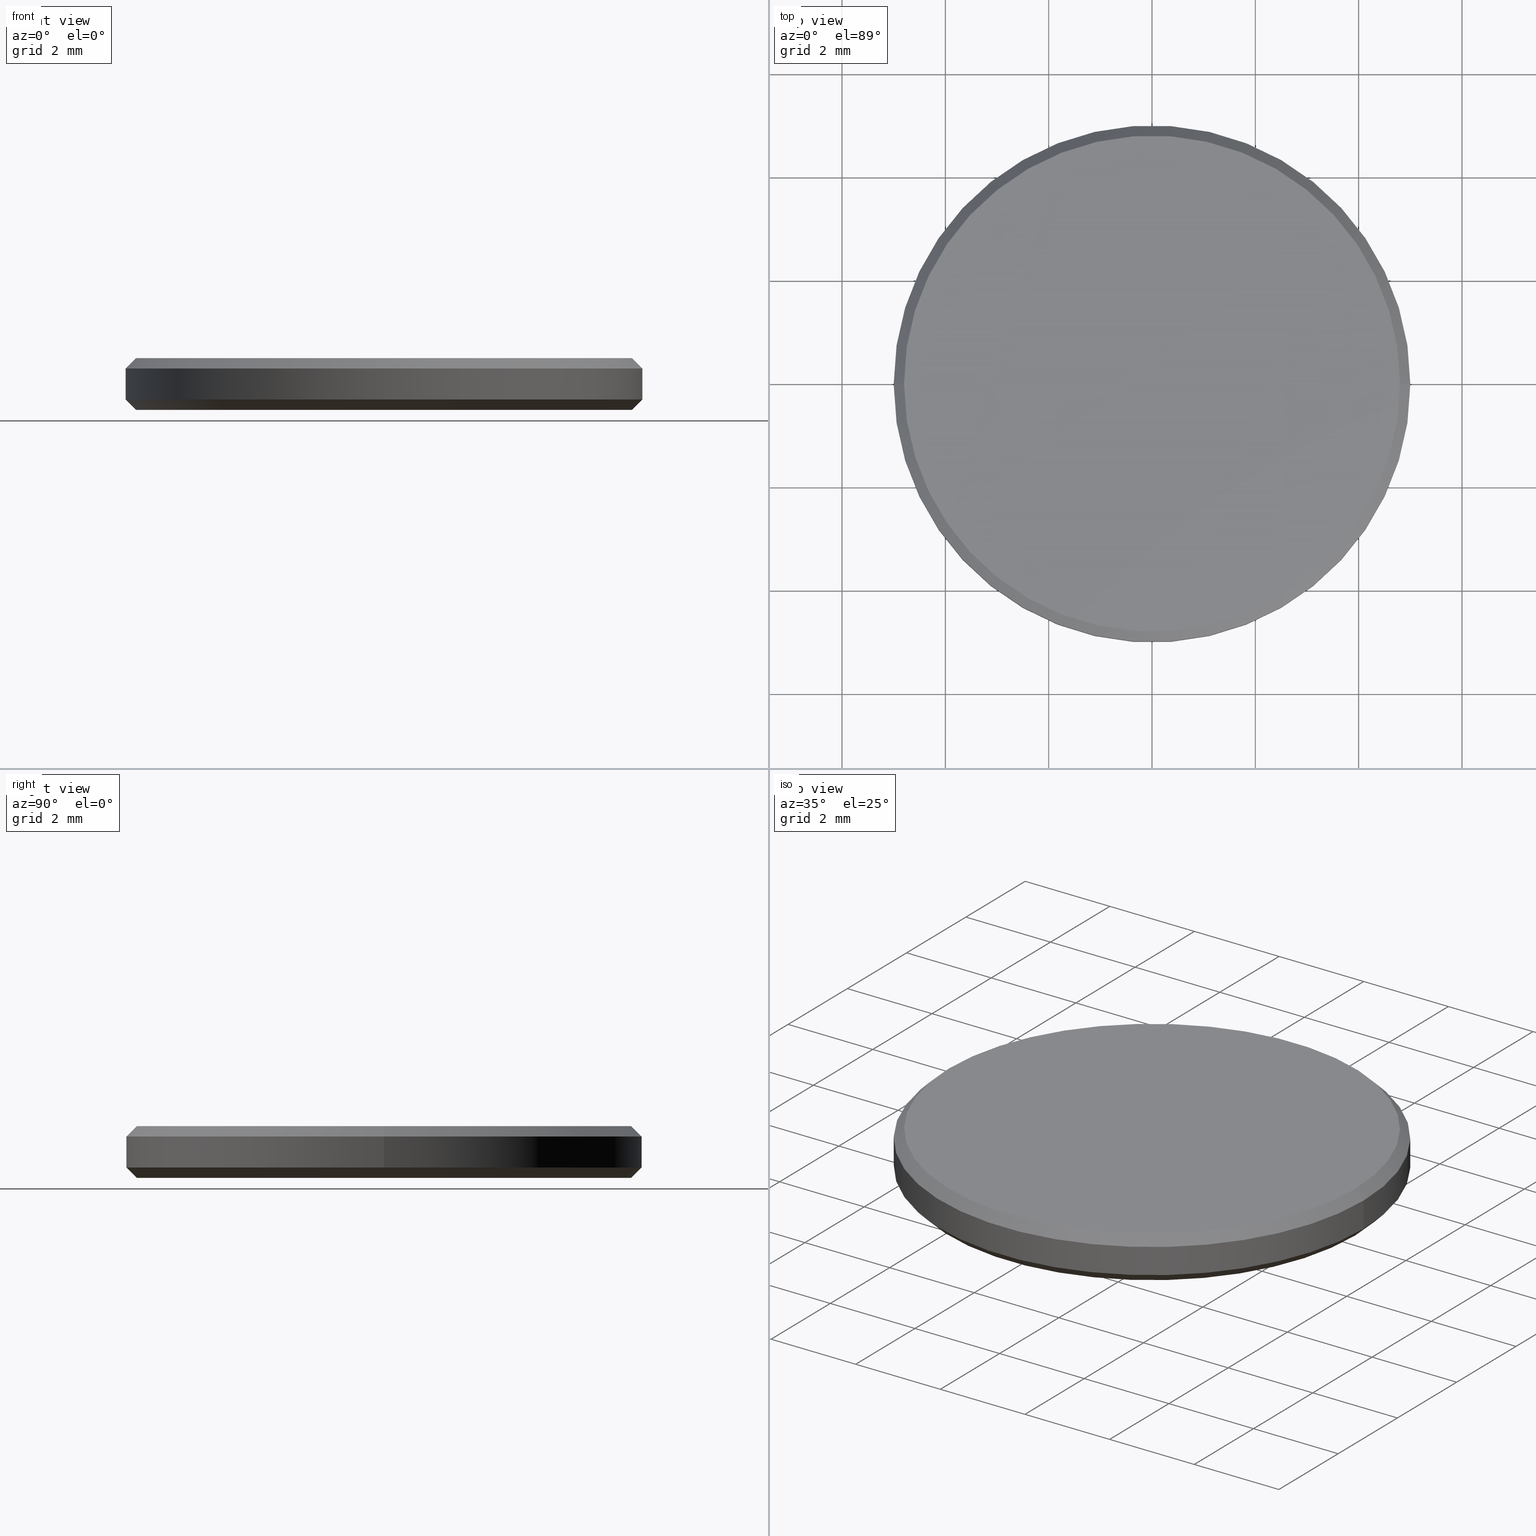
[diagram: canonical four-view strip — front | top / right | iso, engineering-drawing reading convention]
A machine part, canonical four-view strip (front | top / right | iso — engineering-drawing reading convention). The complete STEP part file that produces these views, byte-faithful:
ISO-10303-21;
HEADER;
FILE_DESCRIPTION (( 'STEP AP214' ),
    '1' );
FILE_NAME ('GNIF-160-3850-D10.STEP',
    '2024-07-19T14:41:08',
    ( '' ),
    ( '' ),
    'SwSTEP 2.0',
    'SolidWorks 2022',
    '' );
FILE_SCHEMA (( 'AUTOMOTIVE_DESIGN' ));
ENDSEC;

DATA;
#1 = EDGE_LOOP ( 'NONE', ( #84, #239, #170, #235 ) ) ;
#2 = DIRECTION ( 'NONE',  ( -0.000000000000000000, -0.000000000000000000, 1.000000000000000000 ) ) ;
#3 = CARTESIAN_POINT ( 'NONE',  ( 5.000000000000000000, 6.123233995736766282E-16, 1.000000000000000000 ) ) ;
#4 = PRESENTATION_LAYER_ASSIGNMENT (  '', '', ( #215 ) ) ;
#5 = ORIENTED_EDGE ( 'NONE', *, *, #52, .T. ) ;
#6 = DIRECTION ( 'NONE',  ( 1.000000000000000000, 0.000000000000000000, 0.000000000000000000 ) ) ;
#7 = FACE_OUTER_BOUND ( 'NONE', #237, .T. ) ;
#8 = CARTESIAN_POINT ( 'NONE',  ( 0.000000000000000000, 0.000000000000000000, 0.8000000000000012657 ) ) ;
#9 =( NAMED_UNIT ( * ) SI_UNIT ( $, .STERADIAN. ) SOLID_ANGLE_UNIT ( ) );
#10 = MECHANICAL_DESIGN_GEOMETRIC_PRESENTATION_REPRESENTATION (  '', ( #229 ), #236 ) ;
#11 = ADVANCED_FACE ( 'NONE', ( #138 ), #142, .T. ) ;
#12 = AXIS2_PLACEMENT_3D ( 'NONE', #232, #73, #41 ) ;
#13 = LINE ( 'NONE', #78, #231 ) ;
#14 =( NAMED_UNIT ( * ) SI_UNIT ( $, .STERADIAN. ) SOLID_ANGLE_UNIT ( ) );
#15 = ORIENTED_EDGE ( 'NONE', *, *, #189, .T. ) ;
#16 = FACE_OUTER_BOUND ( 'NONE', #133, .T. ) ;
#17 = ADVANCED_FACE ( 'NONE', ( #190 ), #197, .T. ) ;
#18 = EDGE_LOOP ( 'NONE', ( #207, #153 ) ) ;
#19 = DIRECTION ( 'NONE',  ( -0.000000000000000000, -0.000000000000000000, -1.000000000000000000 ) ) ;
#20 = AXIS2_PLACEMENT_3D ( 'NONE', #90, #161, #122 ) ;
#21 = APPLICATION_CONTEXT ( 'automotive_design' ) ;
#22 = EDGE_LOOP ( 'NONE', ( #118, #177, #149, #77 ) ) ;
#23 = DIRECTION ( 'NONE',  ( -1.000000000000000000, 0.000000000000000000, 0.000000000000000000 ) ) ;
#24 = VECTOR ( 'NONE', #91, 1000.000000000000114 ) ;
#25 = DIRECTION ( 'NONE',  ( 1.000000000000000000, 0.000000000000000000, 0.000000000000000000 ) ) ;
#26 = DIRECTION ( 'NONE',  ( 0.000000000000000000, 0.000000000000000000, -1.000000000000000000 ) ) ;
#27 = ADVANCED_FACE ( 'NONE', ( #168 ), #228, .T. ) ;
#28 = AXIS2_PLACEMENT_3D ( 'NONE', #147, #217, #169 ) ;
#29 = FILL_AREA_STYLE_COLOUR ( '', #120 ) ;
#30 = AXIS2_PLACEMENT_3D ( 'NONE', #154, #221, #115 ) ;
#31 = FILL_AREA_STYLE_COLOUR ( '', #127 ) ;
#32 = VECTOR ( 'NONE', #195, 1000.000000000000000 ) ;
#33 = CARTESIAN_POINT ( 'NONE',  ( 0.000000000000000000, 0.000000000000000000, 0.000000000000000000 ) ) ;
#34 = ORIENTED_EDGE ( 'NONE', *, *, #180, .F. ) ;
#35 =( NAMED_UNIT ( * ) PLANE_ANGLE_UNIT ( ) SI_UNIT ( $, .RADIAN. ) );
#36 = PLANE ( 'NONE',  #38 ) ;
#37 = VERTEX_POINT ( 'NONE', #57 ) ;
#38 = AXIS2_PLACEMENT_3D ( 'NONE', #131, #114, #238 ) ;
#39 = VERTEX_POINT ( 'NONE', #150 ) ;
#40 = ADVANCED_FACE ( 'NONE', ( #16 ), #75, .T. ) ;
#41 = DIRECTION ( 'NONE',  ( 1.000000000000000000, 0.000000000000000000, 0.000000000000000000 ) ) ;
#42 = FACE_OUTER_BOUND ( 'NONE', #18, .T. ) ;
#43 = PRODUCT_DEFINITION ( 'δ֪', '', #223, #212 ) ;
#44 = AXIS2_PLACEMENT_3D ( 'NONE', #164, #103, #23 ) ;
#45 = DIRECTION ( 'NONE',  ( -0.000000000000000000, -0.000000000000000000, 1.000000000000000000 ) ) ;
#46 = LINE ( 'NONE', #194, #24 ) ;
#47 = APPLICATION_CONTEXT ( 'automotive_design' ) ;
#48 = DIRECTION ( 'NONE',  ( 1.000000000000000000, 0.000000000000000000, 0.000000000000000000 ) ) ;
#49 = DIRECTION ( 'NONE',  ( -1.000000000000000000, 0.000000000000000000, 0.000000000000000000 ) ) ;
#50 = PRESENTATION_LAYER_ASSIGNMENT (  '', '', ( #229 ) ) ;
#51 = ORIENTED_EDGE ( 'NONE', *, *, #210, .T. ) ;
#52 = EDGE_CURVE ( 'NONE', #37, #95, #225, .T. ) ;
#53 = AXIS2_PLACEMENT_3D ( 'NONE', #55, #117, #191 ) ;
#54 = DIRECTION ( 'NONE',  ( -0.7071067811865460184, 0.000000000000000000, -0.7071067811865489050 ) ) ;
#55 = CARTESIAN_POINT ( 'NONE',  ( 0.000000000000000000, 0.000000000000000000, 1.000000000000000000 ) ) ;
#56 = AXIS2_PLACEMENT_3D ( 'NONE', #218, #151, #49 ) ;
#57 = CARTESIAN_POINT ( 'NONE',  ( 4.799999999999999822, 0.000000000000000000, 0.000000000000000000 ) ) ;
#58 = ADVANCED_FACE ( 'NONE', ( #112 ), #36, .F. ) ;
#59 = MANIFOLD_SOLID_BREP ( '����1', #60 ) ;
#60 = CLOSED_SHELL ( 'NONE', ( #216, #17, #128, #40, #240, #58, #11, #27 ) ) ;
#61 = DIRECTION ( 'NONE',  ( -0.7071067811865490160, 8.659560562354950115E-17, 0.7071067811865459074 ) ) ;
#62 = CARTESIAN_POINT ( 'NONE',  ( -4.799999999999999822, 6.000769315822029754E-16, 0.000000000000000000 ) ) ;
#63 =( LENGTH_UNIT ( ) NAMED_UNIT ( * ) SI_UNIT ( .MILLI., .METRE. ) );
#64 = CARTESIAN_POINT ( 'NONE',  ( 0.000000000000000000, 0.000000000000000000, 1.000000000000000000 ) ) ;
#65 = CIRCLE ( 'NONE', #152, 4.800000000000002487 ) ;
#66 = AXIS2_PLACEMENT_3D ( 'NONE', #140, #26, #179 ) ;
#67 = EDGE_CURVE ( 'NONE', #79, #173, #13, .T. ) ;
#68 = LINE ( 'NONE', #101, #32 ) ;
#69 = UNCERTAINTY_MEASURE_WITH_UNIT (LENGTH_MEASURE( 1.000000000000000082E-05 ), #63, 'distance_accuracy_value', 'NONE');
#70 = MECHANICAL_DESIGN_GEOMETRIC_PRESENTATION_REPRESENTATION (  '', ( #215 ), #205 ) ;
#71 = PRESENTATION_STYLE_ASSIGNMENT (( #184 ) ) ;
#72 = PRESENTATION_STYLE_ASSIGNMENT (( #201 ) ) ;
#73 = DIRECTION ( 'NONE',  ( -0.000000000000000000, -0.000000000000000000, 1.000000000000000000 ) ) ;
#74 = SHAPE_DEFINITION_REPRESENTATION ( #188, #172 ) ;
#75 = CYLINDRICAL_SURFACE ( 'NONE', #56, 5.000000000000000000 ) ;
#76 = VECTOR ( 'NONE', #61, 1000.000000000000000 ) ;
#77 = ORIENTED_EDGE ( 'NONE', *, *, #67, .F. ) ;
#78 = CARTESIAN_POINT ( 'NONE',  ( -4.800000000000002487, 0.000000000000000000, 1.000000000000000000 ) ) ;
#79 = VERTEX_POINT ( 'NONE', #136 ) ;
#80 =( LENGTH_UNIT ( ) NAMED_UNIT ( * ) SI_UNIT ( .MILLI., .METRE. ) );
#81 = ORIENTED_EDGE ( 'NONE', *, *, #86, .F. ) ;
#82 = AXIS2_PLACEMENT_3D ( 'NONE', #64, #162, #145 ) ;
#83 = DIRECTION ( 'NONE',  ( 1.000000000000000000, 0.000000000000000000, 0.000000000000000000 ) ) ;
#84 = ORIENTED_EDGE ( 'NONE', *, *, #106, .F. ) ;
#85 = ORIENTED_EDGE ( 'NONE', *, *, #52, .F. ) ;
#86 = EDGE_CURVE ( 'NONE', #173, #111, #107, .T. ) ;
#87 = DIRECTION ( 'NONE',  ( 0.000000000000000000, 0.000000000000000000, 1.000000000000000000 ) ) ;
#88 = EDGE_CURVE ( 'NONE', #135, #39, #199, .T. ) ;
#89 = VECTOR ( 'NONE', #19, 1000.000000000000000 ) ;
#90 = CARTESIAN_POINT ( 'NONE',  ( 0.000000000000000000, 0.000000000000000000, 1.000000000000000000 ) ) ;
#91 = DIRECTION ( 'NONE',  ( 0.7071067811865460184, 8.659560562354913137E-17, -0.7071067811865489050 ) ) ;
#92 = EDGE_CURVE ( 'NONE', #135, #173, #119, .T. ) ;
#93 = DIRECTION ( 'NONE',  ( -0.000000000000000000, -0.000000000000000000, -1.000000000000000000 ) ) ;
#94 = SURFACE_SIDE_STYLE ('',( #203 ) ) ;
#95 = VERTEX_POINT ( 'NONE', #62 ) ;
#96 = EDGE_LOOP ( 'NONE', ( #51, #219, #113, #81 ) ) ;
#97 = AXIS2_PLACEMENT_3D ( 'NONE', #104, #45, #6 ) ;
#98 = ORIENTED_EDGE ( 'NONE', *, *, #116, .F. ) ;
#99 = ORIENTED_EDGE ( 'NONE', *, *, #121, .T. ) ;
#100 = CARTESIAN_POINT ( 'NONE',  ( -5.000000000000000000, 6.123233995736765296E-16, 0.1999999999999996503 ) ) ;
#101 = CARTESIAN_POINT ( 'NONE',  ( 5.000000000000000000, 0.000000000000000000, 0.1999999999999996503 ) ) ;
#102 = AXIS2_PLACEMENT_3D ( 'NONE', #8, #192, #48 ) ;
#103 = DIRECTION ( 'NONE',  ( -0.000000000000000000, -0.000000000000000000, -1.000000000000000000 ) ) ;
#104 = CARTESIAN_POINT ( 'NONE',  ( 0.000000000000000000, 0.000000000000000000, 0.1999999999999996503 ) ) ;
#105 =( LENGTH_UNIT ( ) NAMED_UNIT ( * ) SI_UNIT ( .MILLI., .METRE. ) );
#106 = EDGE_CURVE ( 'NONE', #178, #135, #46, .T. ) ;
#107 = LINE ( 'NONE', #185, #144 ) ;
#108 = FILL_AREA_STYLE ('',( #31 ) ) ;
#109 = CIRCLE ( 'NONE', #125, 5.000000000000000000 ) ;
#110 = EDGE_CURVE ( 'NONE', #178, #79, #167, .T. ) ;
#111 = VERTEX_POINT ( 'NONE', #196 ) ;
#112 = FACE_OUTER_BOUND ( 'NONE', #171, .T. ) ;
#113 = ORIENTED_EDGE ( 'NONE', *, *, #116, .T. ) ;
#114 = DIRECTION ( 'NONE',  ( 0.000000000000000000, 0.000000000000000000, 1.000000000000000000 ) ) ;
#115 = DIRECTION ( 'NONE',  ( -1.000000000000000000, 0.000000000000000000, 0.000000000000000000 ) ) ;
#116 = EDGE_CURVE ( 'NONE', #39, #111, #183, .T. ) ;
#117 = DIRECTION ( 'NONE',  ( 0.000000000000000000, 0.000000000000000000, -1.000000000000000000 ) ) ;
#118 = ORIENTED_EDGE ( 'NONE', *, *, #110, .F. ) ;
#119 = CIRCLE ( 'NONE', #102, 5.000000000000000000 ) ;
#120 = COLOUR_RGB ( '',1.000000000000000000, 1.000000000000000000, 1.000000000000000000 ) ;
#121 = EDGE_CURVE ( 'NONE', #111, #39, #109, .T. ) ;
#122 = DIRECTION ( 'NONE',  ( 1.000000000000000000, 0.000000000000000000, -0.000000000000000000 ) ) ;
#123 = CARTESIAN_POINT ( 'NONE',  ( 0.000000000000000000, 0.000000000000000000, 0.000000000000000000 ) ) ;
#124 = CARTESIAN_POINT ( 'NONE',  ( -5.000000000000000000, 0.000000000000000000, 0.8000000000000012657 ) ) ;
#125 = AXIS2_PLACEMENT_3D ( 'NONE', #175, #2, #83 ) ;
#126 = CYLINDRICAL_SURFACE ( 'NONE', #44, 5.000000000000000000 ) ;
#127 = COLOUR_RGB ( '',1.000000000000000000, 1.000000000000000000, 1.000000000000000000 ) ;
#128 = ADVANCED_FACE ( 'NONE', ( #158 ), #126, .T. ) ;
#129 = APPLICATION_PROTOCOL_DEFINITION ( 'draft international standard', 'automotive_design', 1998, #47 ) ;
#130 = DIRECTION ( 'NONE',  ( -0.000000000000000000, -0.000000000000000000, -1.000000000000000000 ) ) ;
#131 = CARTESIAN_POINT ( 'NONE',  ( 0.000000000000000000, 0.000000000000000000, 0.000000000000000000 ) ) ;
#132 =( GEOMETRIC_REPRESENTATION_CONTEXT ( 3 ) GLOBAL_UNCERTAINTY_ASSIGNED_CONTEXT ( ( #69 ) ) GLOBAL_UNIT_ASSIGNED_CONTEXT ( ( #63, #213, #9 ) ) REPRESENTATION_CONTEXT ( 'NONE', 'WORKASPACE' ) );
#133 = EDGE_LOOP ( 'NONE', ( #159, #143, #157, #99 ) ) ;
#134 = DIRECTION ( 'NONE',  ( 1.000000000000000000, 0.000000000000000000, 0.000000000000000000 ) ) ;
#135 = VERTEX_POINT ( 'NONE', #160 ) ;
#136 = CARTESIAN_POINT ( 'NONE',  ( -4.800000000000002487, 0.000000000000000000, 1.000000000000000000 ) ) ;
#137 = AXIS2_PLACEMENT_3D ( 'NONE', #33, #130, #134 ) ;
#138 = FACE_OUTER_BOUND ( 'NONE', #1, .T. ) ;
#139 = DIRECTION ( 'NONE',  ( -0.000000000000000000, -0.000000000000000000, 1.000000000000000000 ) ) ;
#140 = CARTESIAN_POINT ( 'NONE',  ( 0.000000000000000000, 0.000000000000000000, 0.8000000000000012657 ) ) ;
#141 = LINE ( 'NONE', #100, #76 ) ;
#142 = CONICAL_SURFACE ( 'NONE', #30, 4.800000000000002487, 0.7853981633974461696 ) ;
#143 = ORIENTED_EDGE ( 'NONE', *, *, #92, .T. ) ;
#144 = VECTOR ( 'NONE', #93, 1000.000000000000000 ) ;
#145 = DIRECTION ( 'NONE',  ( 1.000000000000000000, 0.000000000000000000, 0.000000000000000000 ) ) ;
#146 =( NAMED_UNIT ( * ) PLANE_ANGLE_UNIT ( ) SI_UNIT ( $, .RADIAN. ) );
#147 = CARTESIAN_POINT ( 'NONE',  ( 0.000000000000000000, 0.000000000000000000, 0.000000000000000000 ) ) ;
#148 = SURFACE_SIDE_STYLE ('',( #166 ) ) ;
#149 = ORIENTED_EDGE ( 'NONE', *, *, #210, .F. ) ;
#150 = CARTESIAN_POINT ( 'NONE',  ( 5.000000000000000000, 6.123233995736766282E-16, 0.1999999999999996503 ) ) ;
#151 = DIRECTION ( 'NONE',  ( -0.000000000000000000, -0.000000000000000000, -1.000000000000000000 ) ) ;
#152 = AXIS2_PLACEMENT_3D ( 'NONE', #209, #87, #227 ) ;
#153 = ORIENTED_EDGE ( 'NONE', *, *, #110, .T. ) ;
#154 = CARTESIAN_POINT ( 'NONE',  ( 0.000000000000000000, 0.000000000000000000, 1.000000000000000000 ) ) ;
#155 = ORIENTED_EDGE ( 'NONE', *, *, #189, .F. ) ;
#156 = DIRECTION ( 'NONE',  ( 1.000000000000000000, 0.000000000000000000, 0.000000000000000000 ) ) ;
#157 = ORIENTED_EDGE ( 'NONE', *, *, #86, .T. ) ;
#158 = FACE_OUTER_BOUND ( 'NONE', #96, .T. ) ;
#159 = ORIENTED_EDGE ( 'NONE', *, *, #88, .F. ) ;
#160 = CARTESIAN_POINT ( 'NONE',  ( 5.000000000000000000, 6.123233995736766282E-16, 0.8000000000000012657 ) ) ;
#161 = DIRECTION ( 'NONE',  ( 0.000000000000000000, 0.000000000000000000, 1.000000000000000000 ) ) ;
#162 = DIRECTION ( 'NONE',  ( 0.000000000000000000, 0.000000000000000000, 1.000000000000000000 ) ) ;
#163 = CARTESIAN_POINT ( 'NONE',  ( 4.800000000000002487, 6.000769315822031726E-16, 1.000000000000000000 ) ) ;
#164 = CARTESIAN_POINT ( 'NONE',  ( 0.000000000000000000, 0.000000000000000000, 1.000000000000000000 ) ) ;
#165 = UNCERTAINTY_MEASURE_WITH_UNIT (LENGTH_MEASURE( 1.000000000000000082E-05 ), #80, 'distance_accuracy_value', 'NONE');
#166 = SURFACE_STYLE_FILL_AREA ( #186 ) ;
#167 = CIRCLE ( 'NONE', #82, 4.800000000000002487 ) ;
#168 = FACE_OUTER_BOUND ( 'NONE', #204, .T. ) ;
#169 = DIRECTION ( 'NONE',  ( 1.000000000000000000, 0.000000000000000000, 0.000000000000000000 ) ) ;
#170 = ORIENTED_EDGE ( 'NONE', *, *, #67, .T. ) ;
#171 = EDGE_LOOP ( 'NONE', ( #5, #206 ) ) ;
#172 = ADVANCED_BREP_SHAPE_REPRESENTATION ( 'GNIF-160-3850-D10', ( #59, #28 ), #132 ) ;
#173 = VERTEX_POINT ( 'NONE', #124 ) ;
#174 = ORIENTED_EDGE ( 'NONE', *, *, #182, .F. ) ;
#175 = CARTESIAN_POINT ( 'NONE',  ( 0.000000000000000000, 0.000000000000000000, 0.1999999999999996503 ) ) ;
#176 = CIRCLE ( 'NONE', #66, 5.000000000000000000 ) ;
#177 = ORIENTED_EDGE ( 'NONE', *, *, #106, .T. ) ;
#178 = VERTEX_POINT ( 'NONE', #163 ) ;
#179 = DIRECTION ( 'NONE',  ( 1.000000000000000000, 0.000000000000000000, 0.000000000000000000 ) ) ;
#180 = EDGE_CURVE ( 'NONE', #95, #111, #141, .T. ) ;
#181 = DIRECTION ( 'NONE',  ( -0.000000000000000000, -0.000000000000000000, -1.000000000000000000 ) ) ;
#182 = EDGE_CURVE ( 'NONE', #95, #37, #208, .T. ) ;
#183 = CIRCLE ( 'NONE', #193, 5.000000000000000000 ) ;
#184 = SURFACE_STYLE_USAGE ( .BOTH. , #148 ) ;
#185 = CARTESIAN_POINT ( 'NONE',  ( -5.000000000000000000, 0.000000000000000000, 1.000000000000000000 ) ) ;
#186 = FILL_AREA_STYLE ('',( #29 ) ) ;
#187 = APPLICATION_PROTOCOL_DEFINITION ( 'draft international standard', 'automotive_design', 1998, #21 ) ;
#188 = PRODUCT_DEFINITION_SHAPE ( 'NONE', 'NONE',  #43 ) ;
#189 = EDGE_CURVE ( 'NONE', #37, #39, #68, .T. ) ;
#190 = FACE_OUTER_BOUND ( 'NONE', #22, .T. ) ;
#191 = DIRECTION ( 'NONE',  ( -1.000000000000000000, 0.000000000000000000, 0.000000000000000000 ) ) ;
#192 = DIRECTION ( 'NONE',  ( 0.000000000000000000, 0.000000000000000000, -1.000000000000000000 ) ) ;
#193 = AXIS2_PLACEMENT_3D ( 'NONE', #214, #139, #156 ) ;
#194 = CARTESIAN_POINT ( 'NONE',  ( 4.800000000000002487, 5.878304635907297169E-16, 1.000000000000000000 ) ) ;
#195 = DIRECTION ( 'NONE',  ( 0.7071067811865490160, 0.000000000000000000, 0.7071067811865459074 ) ) ;
#196 = CARTESIAN_POINT ( 'NONE',  ( -5.000000000000000000, 0.000000000000000000, 0.1999999999999996503 ) ) ;
#197 = CONICAL_SURFACE ( 'NONE', #53, 4.800000000000002487, 0.7853981633974461696 ) ;
#198 =( NAMED_UNIT ( * ) SI_UNIT ( $, .STERADIAN. ) SOLID_ANGLE_UNIT ( ) );
#199 = LINE ( 'NONE', #3, #89 ) ;
#200 = CONICAL_SURFACE ( 'NONE', #97, 5.000000000000000000, 0.7853981633974503884 ) ;
#201 = SURFACE_STYLE_USAGE ( .BOTH. , #94 ) ;
#202 = ORIENTED_EDGE ( 'NONE', *, *, #121, .F. ) ;
#203 = SURFACE_STYLE_FILL_AREA ( #108 ) ;
#204 = EDGE_LOOP ( 'NONE', ( #34, #85, #15, #202 ) ) ;
#205 =( GEOMETRIC_REPRESENTATION_CONTEXT ( 3 ) GLOBAL_UNCERTAINTY_ASSIGNED_CONTEXT ( ( #165 ) ) GLOBAL_UNIT_ASSIGNED_CONTEXT ( ( #80, #35, #14 ) ) REPRESENTATION_CONTEXT ( 'NONE', 'WORKASPACE' ) );
#206 = ORIENTED_EDGE ( 'NONE', *, *, #182, .T. ) ;
#207 = ORIENTED_EDGE ( 'NONE', *, *, #224, .T. ) ;
#208 = CIRCLE ( 'NONE', #211, 4.799999999999999822 ) ;
#209 = CARTESIAN_POINT ( 'NONE',  ( 0.000000000000000000, 0.000000000000000000, 1.000000000000000000 ) ) ;
#210 = EDGE_CURVE ( 'NONE', #173, #135, #176, .T. ) ;
#211 = AXIS2_PLACEMENT_3D ( 'NONE', #123, #181, #25 ) ;
#212 = PRODUCT_DEFINITION_CONTEXT ( 'detailed design', #47, 'design' ) ;
#213 =( NAMED_UNIT ( * ) PLANE_ANGLE_UNIT ( ) SI_UNIT ( $, .RADIAN. ) );
#214 = CARTESIAN_POINT ( 'NONE',  ( 0.000000000000000000, 0.000000000000000000, 0.1999999999999996503 ) ) ;
#215 = STYLED_ITEM ( 'NONE', ( #72 ), #59 ) ;
#216 = ADVANCED_FACE ( 'NONE', ( #7 ), #200, .T. ) ;
#217 = DIRECTION ( 'NONE',  ( 0.000000000000000000, 0.000000000000000000, 1.000000000000000000 ) ) ;
#218 = CARTESIAN_POINT ( 'NONE',  ( 0.000000000000000000, 0.000000000000000000, 1.000000000000000000 ) ) ;
#219 = ORIENTED_EDGE ( 'NONE', *, *, #88, .T. ) ;
#220 = PRODUCT ( 'GNIF-160-3850-D10', 'GNIF-160-3850-D10', '', ( #234 ) ) ;
#221 = DIRECTION ( 'NONE',  ( 0.000000000000000000, 0.000000000000000000, -1.000000000000000000 ) ) ;
#222 = ORIENTED_EDGE ( 'NONE', *, *, #180, .T. ) ;
#223 = PRODUCT_DEFINITION_FORMATION_WITH_SPECIFIED_SOURCE ( '�κ�', '', #220, .NOT_KNOWN. ) ;
#224 = EDGE_CURVE ( 'NONE', #79, #178, #65, .T. ) ;
#225 = CIRCLE ( 'NONE', #137, 4.799999999999999822 ) ;
#226 = PLANE ( 'NONE',  #20 ) ;
#227 = DIRECTION ( 'NONE',  ( 1.000000000000000000, 0.000000000000000000, 0.000000000000000000 ) ) ;
#228 = CONICAL_SURFACE ( 'NONE', #12, 5.000000000000000000, 0.7853981633974503884 ) ;
#229 = STYLED_ITEM ( 'NONE', ( #71 ), #172 ) ;
#230 = UNCERTAINTY_MEASURE_WITH_UNIT (LENGTH_MEASURE( 1.000000000000000082E-05 ), #105, 'distance_accuracy_value', 'NONE');
#231 = VECTOR ( 'NONE', #54, 1000.000000000000114 ) ;
#232 = CARTESIAN_POINT ( 'NONE',  ( 0.000000000000000000, 0.000000000000000000, 0.1999999999999996503 ) ) ;
#233 = PRODUCT_RELATED_PRODUCT_CATEGORY ( 'part', '', ( #220 ) ) ;
#234 = PRODUCT_CONTEXT ( 'NONE', #21, 'mechanical' ) ;
#235 = ORIENTED_EDGE ( 'NONE', *, *, #92, .F. ) ;
#236 =( GEOMETRIC_REPRESENTATION_CONTEXT ( 3 ) GLOBAL_UNCERTAINTY_ASSIGNED_CONTEXT ( ( #230 ) ) GLOBAL_UNIT_ASSIGNED_CONTEXT ( ( #105, #146, #198 ) ) REPRESENTATION_CONTEXT ( 'NONE', 'WORKASPACE' ) );
#237 = EDGE_LOOP ( 'NONE', ( #174, #222, #98, #155 ) ) ;
#238 = DIRECTION ( 'NONE',  ( 1.000000000000000000, 0.000000000000000000, -0.000000000000000000 ) ) ;
#239 = ORIENTED_EDGE ( 'NONE', *, *, #224, .F. ) ;
#240 = ADVANCED_FACE ( 'NONE', ( #42 ), #226, .T. ) ;
ENDSEC;
END-ISO-10303-21;
